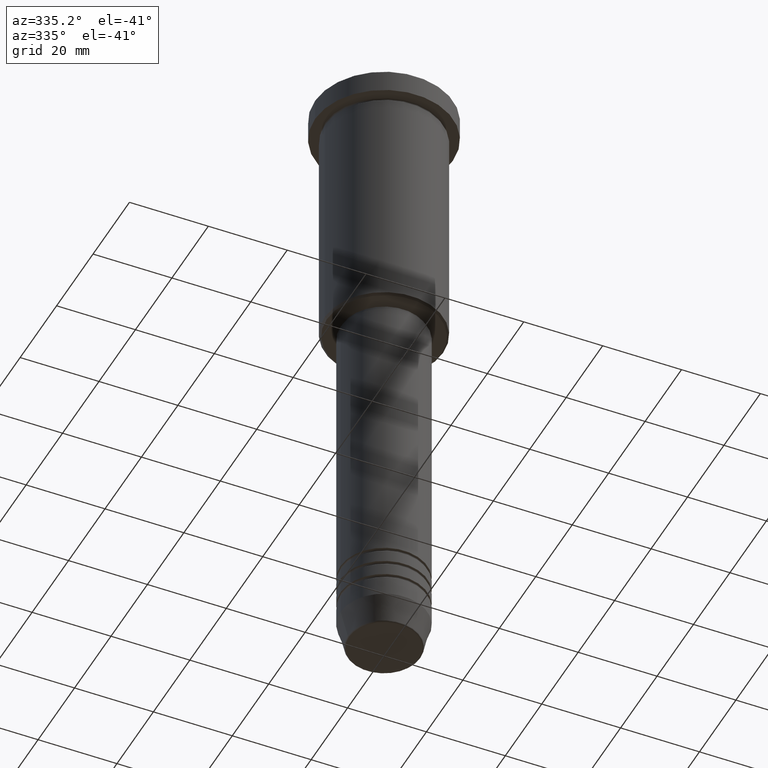
[diagram: clean part render]
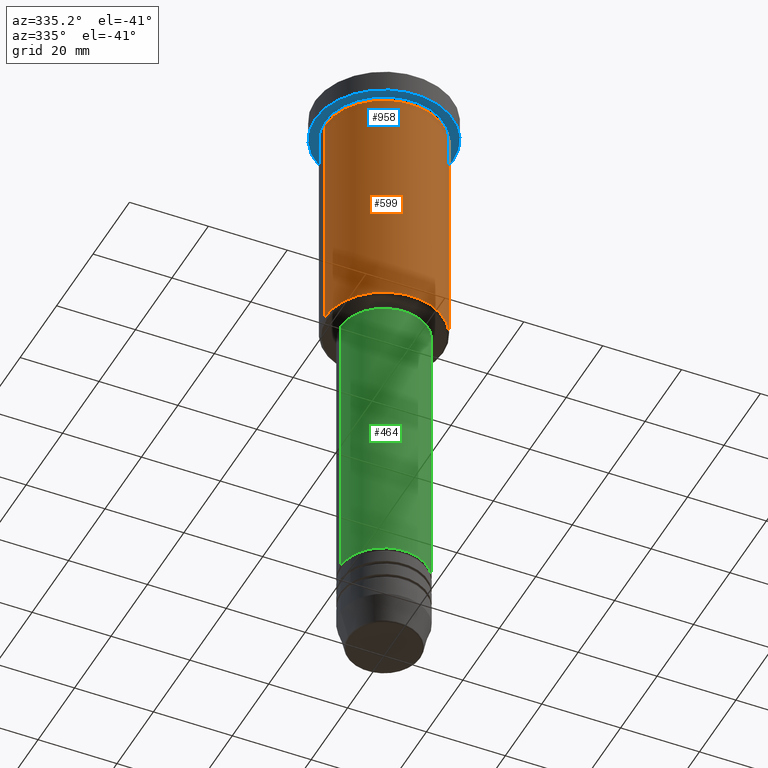
[diagram: same view with three faces highlighted in distinct colors, each labeled with its STEP entity id]
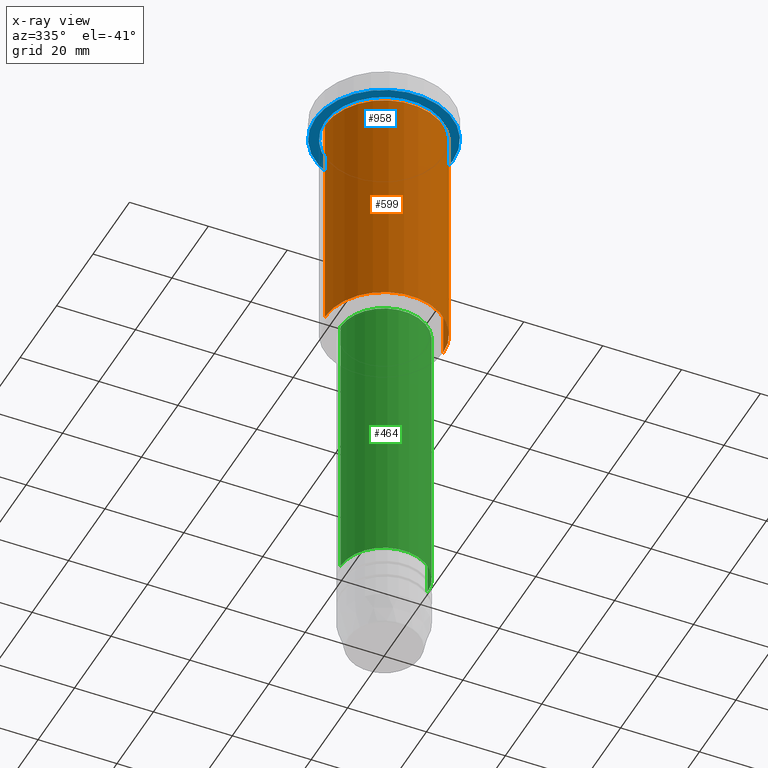
[diagram: x-ray of the same camera — body ghosted, the three highlighted faces saturated]
A machine part, auxiliary view with three faces highlighted in distinct colors.
The next image is the same camera in x-ray (body ghosted, the three faces saturated) — at least one of them is partly hidden behind the body in this view.
Their STEP definitions:

[orange] entity #599 — the highlighted cylindrical surface (partial cylindrical patch) has radius 15 mm, axis along (-0, -0, 1).
#8 = FACE_OUTER_BOUND ( 'NONE', #1094, .T. ) ;
#62 = DIRECTION ( 'NONE',  ( -0.000000000000000000, -0.000000000000000000, 1.000000000000000000 ) ) ;
#87 = CARTESIAN_POINT ( 'NONE',  ( -15.00000000000000000, 1.836970198721029589E-15, -65.50000000000004263 ) ) ;
#98 = CARTESIAN_POINT ( 'NONE',  ( 15.00000000000000000, 0.000000000000000000, -65.50000000000004263 ) ) ;
#102 = CARTESIAN_POINT ( 'NONE',  ( 0.000000000000000000, 0.000000000000000000, 0.000000000000000000 ) ) ;
#158 = LINE ( 'NONE', #1065, #587 ) ;
#181 = ORIENTED_EDGE ( 'NONE', *, *, #403, .T. ) ;
#187 = CARTESIAN_POINT ( 'NONE',  ( -15.00000000000000000, 1.836970198721029589E-15, 0.000000000000000000 ) ) ;
#194 = CIRCLE ( 'NONE', #480, 15.00000000000000000 ) ;
#253 = DIRECTION ( 'NONE',  ( -0.000000000000000000, -0.000000000000000000, 1.000000000000000000 ) ) ;
#270 = AXIS2_PLACEMENT_3D ( 'NONE', #871, #409, #687 ) ;
#285 = CIRCLE ( 'NONE', #270, 15.00000000000000000 ) ;
#325 = EDGE_CURVE ( 'NONE', #632, #711, #285, .T. ) ;
#342 = ORIENTED_EDGE ( 'NONE', *, *, #689, .F. ) ;
#364 = CARTESIAN_POINT ( 'NONE',  ( 15.00000000000000000, 0.000000000000000000, -6.999999999999995559 ) ) ;
#379 = EDGE_CURVE ( 'NONE', #1054, #711, #158, .T. ) ;
#403 = EDGE_CURVE ( 'NONE', #720, #1054, #194, .T. ) ;
#409 = DIRECTION ( 'NONE',  ( -0.000000000000000000, -0.000000000000000000, 1.000000000000000000 ) ) ;
#480 = AXIS2_PLACEMENT_3D ( 'NONE', #826, #253, #1160 ) ;
#498 = ORIENTED_EDGE ( 'NONE', *, *, #379, .T. ) ;
#544 = LINE ( 'NONE', #187, #580 ) ;
#580 = VECTOR ( 'NONE', #1165, 1000.000000000000000 ) ;
#587 = VECTOR ( 'NONE', #62, 1000.000000000000000 ) ;
#599 = ADVANCED_FACE ( 'NONE', ( #8 ), #735, .T. ) ;
#632 = VERTEX_POINT ( 'NONE', #1082 ) ;
#651 = ORIENTED_EDGE ( 'NONE', *, *, #325, .F. ) ;
#687 = DIRECTION ( 'NONE',  ( 1.000000000000000000, 0.000000000000000000, 0.000000000000000000 ) ) ;
#689 = EDGE_CURVE ( 'NONE', #720, #632, #544, .T. ) ;
#711 = VERTEX_POINT ( 'NONE', #364 ) ;
#720 = VERTEX_POINT ( 'NONE', #87 ) ;
#735 = CYLINDRICAL_SURFACE ( 'NONE', #1040, 15.00000000000000000 ) ;
#743 = DIRECTION ( 'NONE',  ( -0.000000000000000000, -0.000000000000000000, 1.000000000000000000 ) ) ;
#826 = CARTESIAN_POINT ( 'NONE',  ( 0.000000000000000000, 0.000000000000000000, -65.50000000000004263 ) ) ;
#871 = CARTESIAN_POINT ( 'NONE',  ( 0.000000000000000000, 0.000000000000000000, -6.999999999999995559 ) ) ;
#1040 = AXIS2_PLACEMENT_3D ( 'NONE', #102, #743, #1108 ) ;
#1054 = VERTEX_POINT ( 'NONE', #98 ) ;
#1065 = CARTESIAN_POINT ( 'NONE',  ( 15.00000000000000000, 0.000000000000000000, 0.000000000000000000 ) ) ;
#1082 = CARTESIAN_POINT ( 'NONE',  ( -15.00000000000000000, 1.836970198721029589E-15, -6.999999999999995559 ) ) ;
#1094 = EDGE_LOOP ( 'NONE', ( #342, #181, #498, #651 ) ) ;
#1108 = DIRECTION ( 'NONE',  ( 1.000000000000000000, 0.000000000000000000, 0.000000000000000000 ) ) ;
#1160 = DIRECTION ( 'NONE',  ( -1.000000000000000000, 0.000000000000000000, 0.000000000000000000 ) ) ;
#1165 = DIRECTION ( 'NONE',  ( -0.000000000000000000, -0.000000000000000000, 1.000000000000000000 ) ) ;

[blue] entity #958 — the highlighted planar face has unit normal (0, 0, -1).
#39 = CARTESIAN_POINT ( 'NONE',  ( 0.000000000000000000, 0.000000000000000000, -5.999999999999995559 ) ) ;
#156 = ORIENTED_EDGE ( 'NONE', *, *, #795, .T. ) ;
#174 = DIRECTION ( 'NONE',  ( -1.000000000000000000, 0.000000000000000000, -0.000000000000000000 ) ) ;
#218 = VERTEX_POINT ( 'NONE', #1155 ) ;
#219 = DIRECTION ( 'NONE',  ( -1.000000000000000000, 0.000000000000000000, 0.000000000000000000 ) ) ;
#244 = CIRCLE ( 'NONE', #473, 17.50000000000000000 ) ;
#279 = CARTESIAN_POINT ( 'NONE',  ( 0.000000000000000000, 0.000000000000000000, -5.999999999999995559 ) ) ;
#290 = DIRECTION ( 'NONE',  ( -0.000000000000000000, -0.000000000000000000, 1.000000000000000000 ) ) ;
#293 = CARTESIAN_POINT ( 'NONE',  ( -15.00000000000000000, 0.000000000000000000, -5.999999999999994671 ) ) ;
#299 = AXIS2_PLACEMENT_3D ( 'NONE', #942, #1024, #219 ) ;
#316 = AXIS2_PLACEMENT_3D ( 'NONE', #392, #1016, #1117 ) ;
#363 = ORIENTED_EDGE ( 'NONE', *, *, #754, .F. ) ;
#377 = EDGE_LOOP ( 'NONE', ( #363, #853 ) ) ;
#392 = CARTESIAN_POINT ( 'NONE',  ( 0.000000000000000000, 0.000000000000000000, -5.999999999999995559 ) ) ;
#408 = VERTEX_POINT ( 'NONE', #895 ) ;
#438 = DIRECTION ( 'NONE',  ( 0.000000000000000000, 0.000000000000000000, -1.000000000000000000 ) ) ;
#473 = AXIS2_PLACEMENT_3D ( 'NONE', #279, #1006, #920 ) ;
#588 = EDGE_CURVE ( 'NONE', #905, #408, #978, .T. ) ;
#608 = VERTEX_POINT ( 'NONE', #293 ) ;
#649 = AXIS2_PLACEMENT_3D ( 'NONE', #39, #290, #652 ) ;
#652 = DIRECTION ( 'NONE',  ( -1.000000000000000000, 0.000000000000000000, 0.000000000000000000 ) ) ;
#658 = CIRCLE ( 'NONE', #299, 15.00000000000000000 ) ;
#692 = CARTESIAN_POINT ( 'NONE',  ( -17.50000000000000000, 2.143131898507868248E-15, -5.999999999999995559 ) ) ;
#754 = EDGE_CURVE ( 'NONE', #408, #905, #244, .T. ) ;
#788 = FACE_BOUND ( 'NONE', #1170, .T. ) ;
#795 = EDGE_CURVE ( 'NONE', #218, #608, #658, .T. ) ;
#814 = PLANE ( 'NONE',  #835 ) ;
#822 = CARTESIAN_POINT ( 'NONE',  ( 0.000000000000000000, 17.50000000000000000, -5.999999999999995559 ) ) ;
#835 = AXIS2_PLACEMENT_3D ( 'NONE', #822, #438, #174 ) ;
#853 = ORIENTED_EDGE ( 'NONE', *, *, #588, .F. ) ;
#887 = EDGE_CURVE ( 'NONE', #608, #218, #1123, .T. ) ;
#892 = ORIENTED_EDGE ( 'NONE', *, *, #887, .T. ) ;
#895 = CARTESIAN_POINT ( 'NONE',  ( 17.50000000000000000, 0.000000000000000000, -5.999999999999995559 ) ) ;
#905 = VERTEX_POINT ( 'NONE', #692 ) ;
#920 = DIRECTION ( 'NONE',  ( 1.000000000000000000, 0.000000000000000000, 0.000000000000000000 ) ) ;
#942 = CARTESIAN_POINT ( 'NONE',  ( 0.000000000000000000, 0.000000000000000000, -5.999999999999995559 ) ) ;
#958 = ADVANCED_FACE ( 'NONE', ( #788, #1154 ), #814, .T. ) ;
#978 = CIRCLE ( 'NONE', #316, 17.50000000000000000 ) ;
#1006 = DIRECTION ( 'NONE',  ( -0.000000000000000000, -0.000000000000000000, 1.000000000000000000 ) ) ;
#1016 = DIRECTION ( 'NONE',  ( -0.000000000000000000, -0.000000000000000000, 1.000000000000000000 ) ) ;
#1024 = DIRECTION ( 'NONE',  ( -0.000000000000000000, -0.000000000000000000, 1.000000000000000000 ) ) ;
#1117 = DIRECTION ( 'NONE',  ( 1.000000000000000000, 0.000000000000000000, 0.000000000000000000 ) ) ;
#1123 = CIRCLE ( 'NONE', #649, 15.00000000000000000 ) ;
#1154 = FACE_OUTER_BOUND ( 'NONE', #377, .T. ) ;
#1155 = CARTESIAN_POINT ( 'NONE',  ( 15.00000000000000000, 1.836970198721029589E-15, -5.999999999999994671 ) ) ;
#1170 = EDGE_LOOP ( 'NONE', ( #892, #156 ) ) ;

[green] entity #464 — the highlighted cylindrical surface (partial cylindrical patch) has radius 11 mm, axis along (-0, -0, 1).
#166 = CARTESIAN_POINT ( 'NONE',  ( -11.00000000000000000, 1.347111479062088405E-15, -67.00000000000002842 ) ) ;
#167 = VECTOR ( 'NONE', #626, 1000.000000000000000 ) ;
#190 = DIRECTION ( 'NONE',  ( 1.000000000000000000, 0.000000000000000000, 0.000000000000000000 ) ) ;
#192 = LINE ( 'NONE', #271, #167 ) ;
#206 = EDGE_CURVE ( 'NONE', #222, #851, #576, .T. ) ;
#222 = VERTEX_POINT ( 'NONE', #427 ) ;
#229 = EDGE_LOOP ( 'NONE', ( #821, #944, #861, #362 ) ) ;
#271 = CARTESIAN_POINT ( 'NONE',  ( -11.00000000000000000, 1.347111479062088405E-15, 0.000000000000000000 ) ) ;
#340 = FACE_OUTER_BOUND ( 'NONE', #229, .T. ) ;
#352 = DIRECTION ( 'NONE',  ( -0.000000000000000000, -0.000000000000000000, 1.000000000000000000 ) ) ;
#361 = EDGE_CURVE ( 'NONE', #397, #222, #420, .T. ) ;
#362 = ORIENTED_EDGE ( 'NONE', *, *, #785, .F. ) ;
#391 = CARTESIAN_POINT ( 'NONE',  ( 0.000000000000000000, 0.000000000000000000, -67.00000000000002842 ) ) ;
#397 = VERTEX_POINT ( 'NONE', #798 ) ;
#406 = CARTESIAN_POINT ( 'NONE',  ( 11.00000000000000000, 0.000000000000000000, -67.00000000000002842 ) ) ;
#419 = VECTOR ( 'NONE', #1132, 1000.000000000000000 ) ;
#420 = CIRCLE ( 'NONE', #1045, 11.00000000000000000 ) ;
#427 = CARTESIAN_POINT ( 'NONE',  ( 11.00000000000000000, 0.000000000000000000, -139.9999999999999147 ) ) ;
#464 = ADVANCED_FACE ( 'NONE', ( #340 ), #622, .T. ) ;
#488 = DIRECTION ( 'NONE',  ( 1.000000000000000000, 0.000000000000000000, 0.000000000000000000 ) ) ;
#576 = LINE ( 'NONE', #770, #419 ) ;
#622 = CYLINDRICAL_SURFACE ( 'NONE', #680, 11.00000000000000000 ) ;
#626 = DIRECTION ( 'NONE',  ( -0.000000000000000000, -0.000000000000000000, 1.000000000000000000 ) ) ;
#634 = CARTESIAN_POINT ( 'NONE',  ( 0.000000000000000000, 0.000000000000000000, 0.000000000000000000 ) ) ;
#680 = AXIS2_PLACEMENT_3D ( 'NONE', #634, #998, #190 ) ;
#704 = VERTEX_POINT ( 'NONE', #166 ) ;
#710 = AXIS2_PLACEMENT_3D ( 'NONE', #391, #1032, #488 ) ;
#770 = CARTESIAN_POINT ( 'NONE',  ( 11.00000000000000000, 0.000000000000000000, 0.000000000000000000 ) ) ;
#785 = EDGE_CURVE ( 'NONE', #704, #851, #929, .T. ) ;
#798 = CARTESIAN_POINT ( 'NONE',  ( -11.00000000000000000, 1.347111479062088405E-15, -139.9999999999999147 ) ) ;
#811 = DIRECTION ( 'NONE',  ( 1.000000000000000000, 0.000000000000000000, 0.000000000000000000 ) ) ;
#821 = ORIENTED_EDGE ( 'NONE', *, *, #995, .F. ) ;
#851 = VERTEX_POINT ( 'NONE', #406 ) ;
#861 = ORIENTED_EDGE ( 'NONE', *, *, #206, .T. ) ;
#929 = CIRCLE ( 'NONE', #710, 11.00000000000000000 ) ;
#944 = ORIENTED_EDGE ( 'NONE', *, *, #361, .T. ) ;
#995 = EDGE_CURVE ( 'NONE', #397, #704, #192, .T. ) ;
#998 = DIRECTION ( 'NONE',  ( -0.000000000000000000, -0.000000000000000000, 1.000000000000000000 ) ) ;
#1032 = DIRECTION ( 'NONE',  ( -0.000000000000000000, -0.000000000000000000, 1.000000000000000000 ) ) ;
#1045 = AXIS2_PLACEMENT_3D ( 'NONE', #1140, #352, #811 ) ;
#1132 = DIRECTION ( 'NONE',  ( -0.000000000000000000, -0.000000000000000000, 1.000000000000000000 ) ) ;
#1140 = CARTESIAN_POINT ( 'NONE',  ( 0.000000000000000000, 0.000000000000000000, -139.9999999999999147 ) ) ;